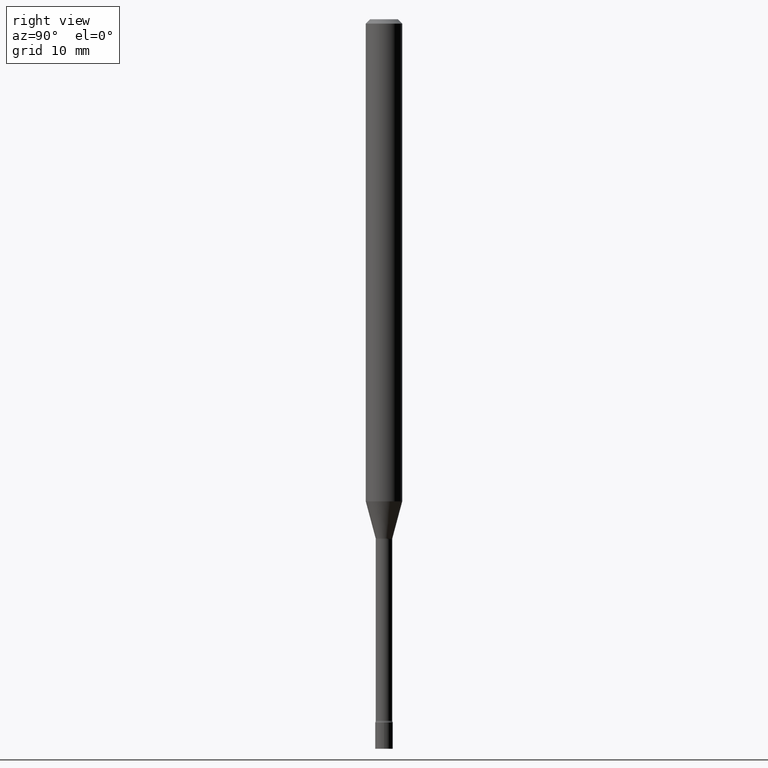
[diagram: clean part render]
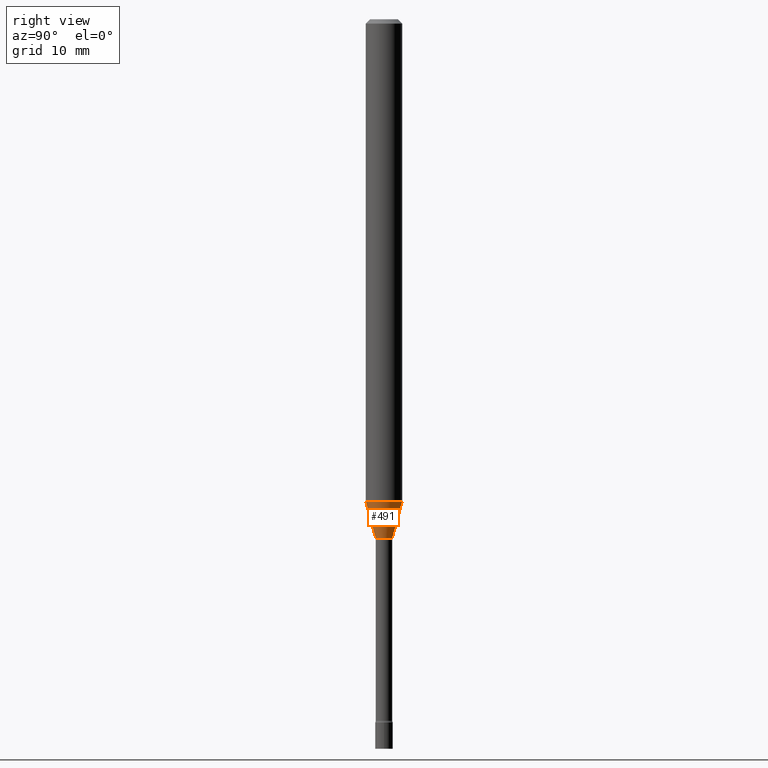
[diagram: same view with one face highlighted and labeled with its STEP entity id]
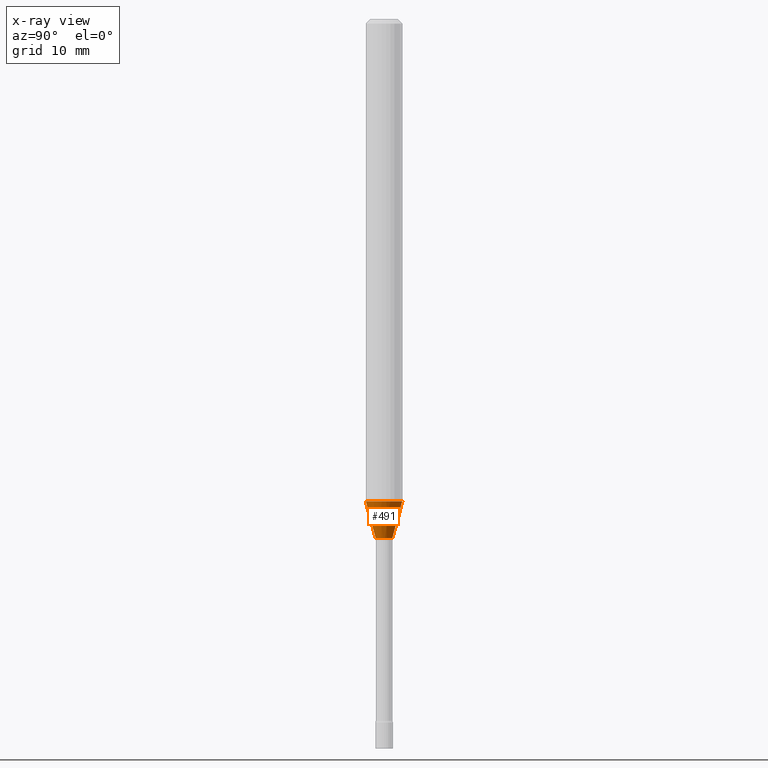
[diagram: x-ray of the same camera — body ghosted, the highlighted face saturated]
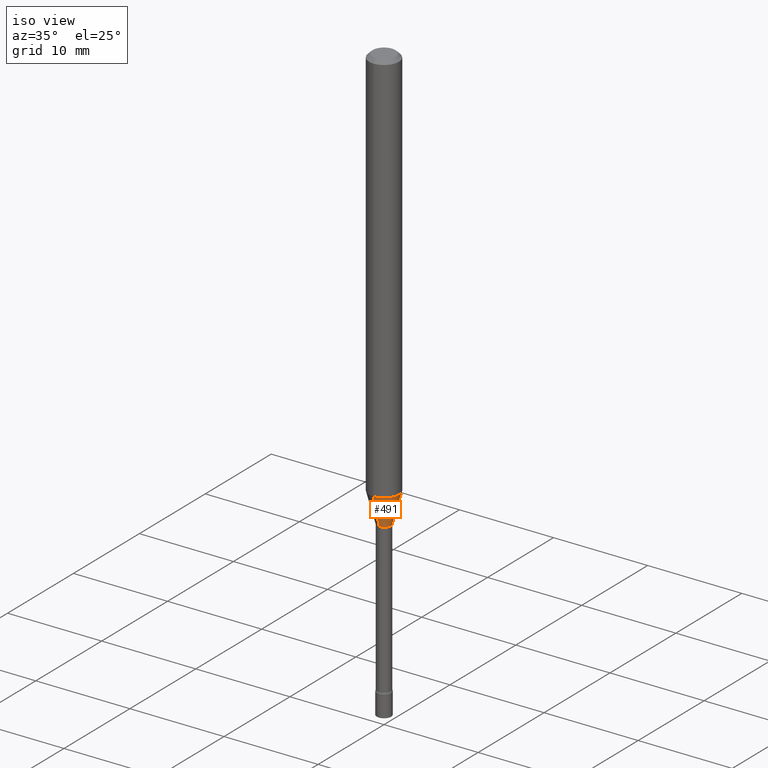
[diagram: same view with one face highlighted and labeled with its STEP entity id]
A machine part, right view. The second image highlights one B-rep face of the part: STEP entity #491.
The next image is the same camera in x-ray: the body ghosted, the highlighted face saturated — about 0% of this face is hidden behind the body in this view.
A second angle (iso view) of the same face is appended — the face is thin or edge-on in the first view.
In plain terms, the highlighted conical surface has half-angle 15 deg.
Its self-contained STEP definition (entity closure, byte-faithful):
#53 = VERTEX_POINT ( 'NONE', #140 ) ;
#54 = DIRECTION ( 'NONE',  ( -6.982962677686265922E-15, -1.000000000000000000, 4.370956789862821150E-15 ) ) ;
#67 = CARTESIAN_POINT ( 'NONE',  ( -2.004886277601557316E-16, -0.02871111260567018111, -1.778092501787273294 ) ) ;
#72 = CARTESIAN_POINT ( 'NONE',  ( 4.348350561435517217E-29, -6.208061058761581417E-15, -1.778092501787273294 ) ) ;
#80 = DIRECTION ( 'NONE',  ( -2.445514255903286790E-29, 3.491416252259917408E-15, 1.000000000000000000 ) ) ;
#97 = AXIS2_PLACEMENT_3D ( 'NONE', #166, #80, #54 ) ;
#102 = CARTESIAN_POINT ( 'NONE',  ( -4.364351673553513882E-16, -0.06250000000000580092, -1.651990657300387744 ) ) ;
#109 = EDGE_CURVE ( 'NONE', #53, #173, #422, .T. ) ;
#120 = LINE ( 'NONE', #67, #242 ) ;
#124 = ORIENTED_EDGE ( 'NONE', *, *, #274, .F. ) ;
#140 = CARTESIAN_POINT ( 'NONE',  ( 3.240469674127971596E-16, 0.02871111260565776743, -1.778092501787273294 ) ) ;
#150 = CARTESIAN_POINT ( 'NONE',  ( 2.040047249754912493E-16, 0.02871111260565776743, -1.778092501787273294 ) ) ;
#161 = CIRCLE ( 'NONE', #97, 0.06250000000000000000 ) ;
#163 = DIRECTION ( 'NONE',  ( -6.982962677686265922E-15, -1.000000000000000000, 0.000000000000000000 ) ) ;
#164 = DIRECTION ( 'NONE',  ( -2.445514255903286790E-29, 3.491416252259917408E-15, 1.000000000000000000 ) ) ;
#166 = CARTESIAN_POINT ( 'NONE',  ( 4.039966703047140038E-29, -5.767787029480118116E-15, -1.651990657300387966 ) ) ;
#173 = VERTEX_POINT ( 'NONE', #194 ) ;
#186 = AXIS2_PLACEMENT_3D ( 'NONE', #445, #250, #163 ) ;
#194 = CARTESIAN_POINT ( 'NONE',  ( 4.440892098501027495E-16, 0.06249999999999419215, -1.651990657300388188 ) ) ;
#195 = EDGE_CURVE ( 'NONE', #215, #53, #409, .T. ) ;
#198 = FACE_OUTER_BOUND ( 'NONE', #463, .T. ) ;
#215 = VERTEX_POINT ( 'NONE', #390 ) ;
#231 = EDGE_CURVE ( 'NONE', #215, #253, #120, .T. ) ;
#242 = VECTOR ( 'NONE', #386, 39.37007874015748854 ) ;
#250 = DIRECTION ( 'NONE',  ( -2.445514255903286790E-29, 3.491416252259917408E-15, 1.000000000000000000 ) ) ;
#253 = VERTEX_POINT ( 'NONE', #102 ) ;
#274 = EDGE_CURVE ( 'NONE', #253, #173, #161, .T. ) ;
#341 = VECTOR ( 'NONE', #517, 39.37007874015748854 ) ;
#359 = DIRECTION ( 'NONE',  ( -6.982962677686265922E-15, -1.000000000000000000, 0.000000000000000000 ) ) ;
#386 = DIRECTION ( 'NONE',  ( -1.807323732225328562E-15, -0.2588190451025179639, 0.9659258262890690894 ) ) ;
#390 = CARTESIAN_POINT ( 'NONE',  ( -2.004886277601557316E-16, -0.02871111260567018111, -1.778092501787273294 ) ) ;
#394 = ORIENTED_EDGE ( 'NONE', *, *, #231, .F. ) ;
#398 = AXIS2_PLACEMENT_3D ( 'NONE', #72, #164, #359 ) ;
#400 = CONICAL_SURFACE ( 'NONE', #186, 0.02871111260566397427, 0.2617993877991500740 ) ;
#409 = CIRCLE ( 'NONE', #398, 0.02871111260566397427 ) ;
#422 = LINE ( 'NONE', #150, #341 ) ;
#445 = CARTESIAN_POINT ( 'NONE',  ( 4.348350561435517217E-29, -6.208061058761581417E-15, -1.778092501787273294 ) ) ;
#452 = ORIENTED_EDGE ( 'NONE', *, *, #195, .T. ) ;
#460 = ORIENTED_EDGE ( 'NONE', *, *, #109, .T. ) ;
#463 = EDGE_LOOP ( 'NONE', ( #452, #460, #124, #394 ) ) ;
#491 = ADVANCED_FACE ( 'NONE', ( #198 ), #400, .T. ) ;
#517 = DIRECTION ( 'NONE',  ( 1.839019923739598738E-15, 0.2588190451025247363, 0.9659258262890673130 ) ) ;